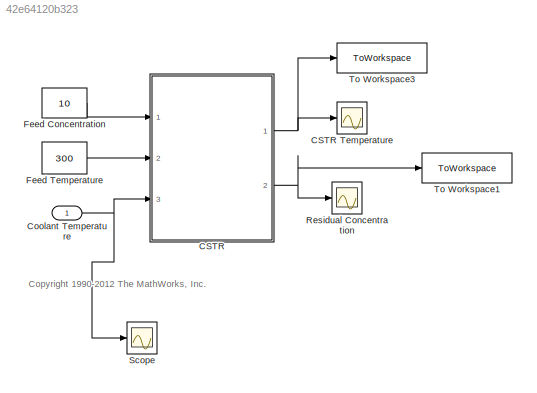
MODEL slx_42e64120b323
KIND model
CONFIG AbsTol = auto
CONFIG EnableMultiTasking = on
CONFIG FixedStep = auto
CONFIG MaxStep = auto
CONFIG MinStep = auto
CONFIG RelTol = 1e-3
CONFIG SampleTimeConstraint = Unconstrained
CONFIG SolverName = ode45
CONFIG StartTime = 0
CONFIG StopTime = 40
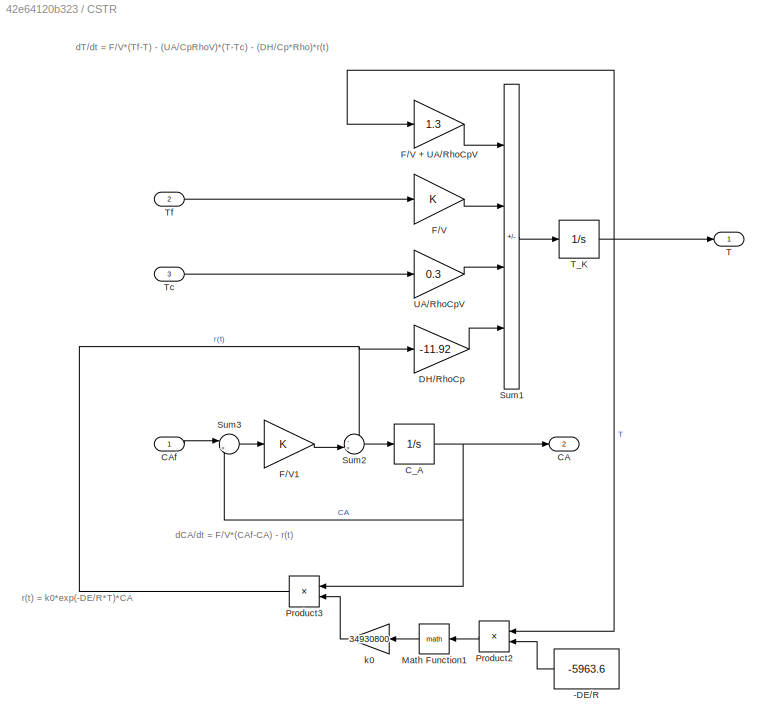
BLOCK [SubSystem] CSTR
  Ports = [3, 2]
  RequestExecContextInheritance = off
BLOCK [Scope] CSTR Temperature
  Floating = off
  NumInputPorts = 1
  Ports = [1]
  ScopeSpecificationString = Simulink.scopes.TimeScopeBlockCfg('CurrentConfiguration', extmgr.ConfigurationSet(extmgr.Configuration('Core','General UI',true),extmgr.Configuration('Core','Source UI',true),extmgr.Configuration('Sources','WiredSimulink',true,'DataLoggingVariableName','ScopeData2','DataLoggingSaveFormat','StructureWithTime','DataLoggingDecimation','1','DataLoggingDecimateData',true),extmgr.Configuration('Visuals'...<+1677ch>
BLOCK [Constant] CSTR/-DE//R
  SampleTime = 0
  Value = -5963.6
BLOCK [Outport] CSTR/CA
  Port = 2
BLOCK [Inport] CSTR/CAf
BLOCK [Integrator] CSTR/C_A
  InitialCondition = 8.5695
  LimitOutput = on
  LowerSaturationLimit = 0
  Ports = [1, 1]
BLOCK [Gain] CSTR/DH//RhoCp
  Gain = -11.92
  OutDataTypeStr = Inherit: Same as input
  ParamDataTypeStr = Inherit: Same as input
  SaturateOnIntegerOverflow = on
BLOCK [Gain] CSTR/F//V
  OutDataTypeStr = Inherit: Same as input
  ParamDataTypeStr = Inherit: Same as input
  SaturateOnIntegerOverflow = on
BLOCK [Gain] CSTR/F//V + UA//RhoCpV
  Gain = 1.3
  OutDataTypeStr = Inherit: Same as input
  ParamDataTypeStr = Inherit: Same as input
  SaturateOnIntegerOverflow = on
BLOCK [Gain] CSTR/F//V1
  OutDataTypeStr = Inherit: Same as input
  ParamDataTypeStr = Inherit: Same as input
  SaturateOnIntegerOverflow = on
BLOCK [Math] CSTR/Math Function1
  Ports = [1, 1]
  SignedPower = on
BLOCK [Product] CSTR/Product2
  InputSameDT = on
  Inputs = /*
  OutDataTypeStr = Inherit: Same as first input
  Ports = [2, 1]
  RndMeth = Zero
  SaturateOnIntegerOverflow = on
BLOCK [Product] CSTR/Product3
  InputSameDT = on
  OutDataTypeStr = Inherit: Same as first input
  Ports = [2, 1]
  RndMeth = Zero
  SaturateOnIntegerOverflow = on
BLOCK [Sum] CSTR/Sum1
  IconShape = rectangular
  InputSameDT = on
  Inputs = -++-
  OutDataTypeStr = Inherit: Same as first input
  Ports = [4, 1]
  SaturateOnIntegerOverflow = on
BLOCK [Sum] CSTR/Sum2
  Inputs = -+|
  Ports = [2, 1]
BLOCK [Sum] CSTR/Sum3
  Inputs = |+-
  Ports = [2, 1]
BLOCK [Outport] CSTR/T
BLOCK [Integrator] CSTR/T_K
  InitialCondition = 311.267
  LimitOutput = on
  LowerSaturationLimit = 0
  Ports = [1, 1]
BLOCK [Inport] CSTR/Tc
  Port = 3
BLOCK [Inport] CSTR/Tf
  Port = 2
BLOCK [Gain] CSTR/UA//RhoCpV
  Gain = 0.3
  OutDataTypeStr = Inherit: Same as input
  ParamDataTypeStr = Inherit: Same as input
  SaturateOnIntegerOverflow = on
BLOCK [Gain] CSTR/k0
  Gain = 34930800
  OutDataTypeStr = Inherit: Same as input
  ParamDataTypeStr = Inherit: Same as input
  SaturateOnIntegerOverflow = on
BLOCK [Inport] Coolant Temperature
BLOCK [Constant] Feed Concentration
  Value = 10
BLOCK [Constant] Feed Temperature
  Value = 300
BLOCK [Scope] Residual Concentration
  Floating = off
  NumInputPorts = 1
  Ports = [1]
  ScopeSpecificationString = Simulink.scopes.TimeScopeBlockCfg('CurrentConfiguration', extmgr.ConfigurationSet(extmgr.Configuration('Core','General UI',true),extmgr.Configuration('Core','Source UI',true),extmgr.Configuration('Sources','WiredSimulink',true,'DataLoggingVariableName','ScopeData1','DataLoggingSaveFormat','StructureWithTime','DataLoggingDecimation','1','DataLoggingDecimateData',true),extmgr.Configuration('Visuals'...<+1666ch>
BLOCK [Scope] Scope
  Floating = off
  NumInputPorts = 1
  Ports = [1]
  ScopeSpecificationString = Simulink.scopes.TimeScopeBlockCfg('CurrentConfiguration', extmgr.ConfigurationSet(extmgr.Configuration('Core','General UI',true),extmgr.Configuration('Core','Source UI',true),extmgr.Configuration('Sources','WiredSimulink',true,'DataLoggingVariableName','ScopeData1'),extmgr.Configuration('Visuals','Time Domain',true,'SerializedDisplays',{struct('MinYLimReal','-1.00000','MaxYLimReal','1.00000','YLab...<+1378ch>
BLOCK [ToWorkspace] To Workspace1
  FixptAsFi = on
  MaxDataPoints = inf
  Ports = [1]
  SampleTime = -1
  SaveFormat = Timeseries
  VariableName = sim_openctsr_residualtemperature
BLOCK [ToWorkspace] To Workspace3
  FixptAsFi = on
  MaxDataPoints = inf
  Ports = [1]
  SampleTime = -1
  SaveFormat = Timeseries
  VariableName = sim_openctsr_temperature
ANNOTATION (root): <copyright redacted>
ANNOTATION CSTR: dCA/dt = F/V*(CAf-CA) - r(t)
ANNOTATION CSTR: dT/dt = F/V*(Tf-T) - (UA/CpRhoV)*(T-Tc) - (DH/Cp*Rho)*r(t)
ANNOTATION CSTR: r(t) = k0*exp(-DE/R*T)*CA
LINE CSTR/-DE//R:1 -> CSTR/Product2:2
LINE CSTR/CAf:1 -> CSTR/Sum3:1
NET CSTR/C_A:1 -> CSTR/CA:1, CSTR/Product3:1, CSTR/Sum3:2
LINE CSTR/DH//RhoCp:1 -> CSTR/Sum1:4
LINE CSTR/F//V + UA//RhoCpV:1 -> CSTR/Sum1:1
LINE CSTR/F//V1:1 -> CSTR/Sum2:2
LINE CSTR/F//V:1 -> CSTR/Sum1:2
LINE CSTR/Math Function1:1 -> CSTR/k0:1
LINE CSTR/Product2:1 -> CSTR/Math Function1:1
NET CSTR/Product3:1 -> CSTR/DH//RhoCp:1, CSTR/Sum2:1
LINE CSTR/Sum1:1 -> CSTR/T_K:1
LINE CSTR/Sum2:1 -> CSTR/C_A:1
LINE CSTR/Sum3:1 -> CSTR/F//V1:1
NET CSTR/T_K:1 -> CSTR/F//V + UA//RhoCpV:1, CSTR/Product2:1, CSTR/T:1
LINE CSTR/Tc:1 -> CSTR/UA//RhoCpV:1
LINE CSTR/Tf:1 -> CSTR/F//V:1
LINE CSTR/UA//RhoCpV:1 -> CSTR/Sum1:3
LINE CSTR/k0:1 -> CSTR/Product3:2
NET CSTR:1 -> CSTR Temperature:1, To Workspace3:1
NET CSTR:2 -> Residual Concentration:1, To Workspace1:1
NET Coolant Temperature:1 -> CSTR:3, Scope:1
LINE Feed Concentration:1 -> CSTR:1
LINE Feed Temperature:1 -> CSTR:2
note: NET lines group one-source signal fan-out (src -> all destinations, sorted); 1:1 wires keep LINE
